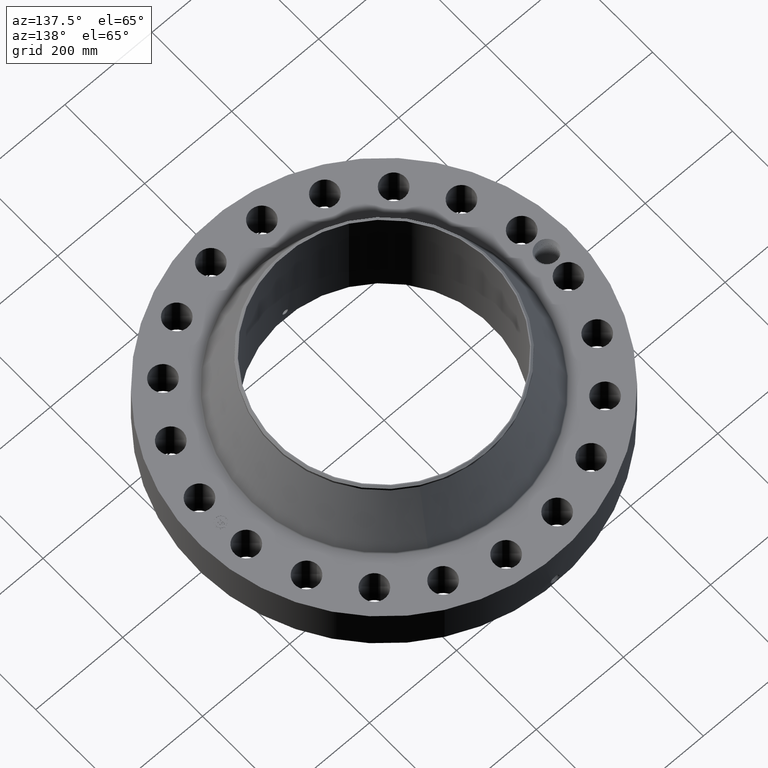
[diagram: clean part render]
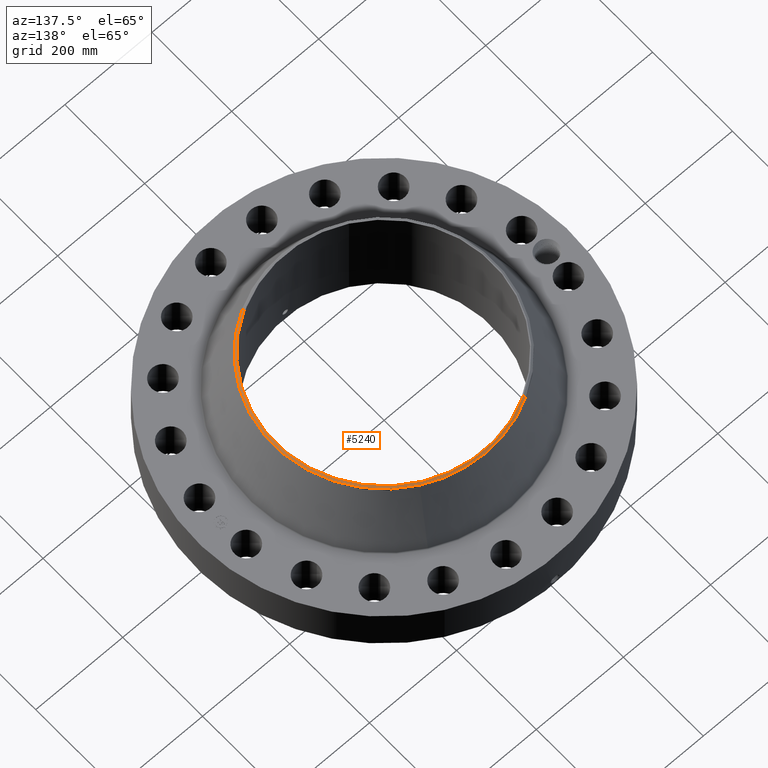
[diagram: same view with one face highlighted and labeled with its STEP entity id]
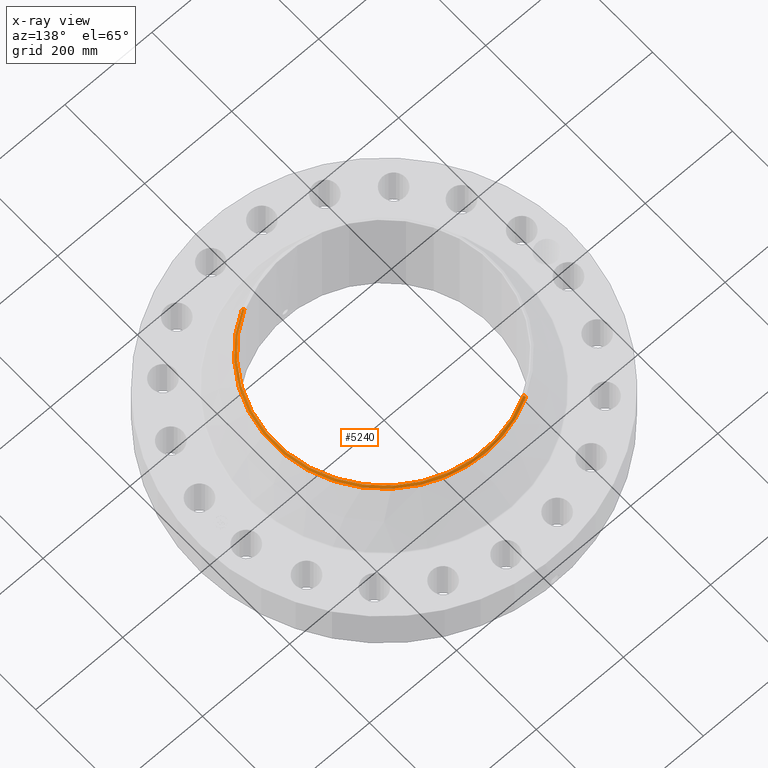
[diagram: x-ray of the same camera — body ghosted, the highlighted face saturated]
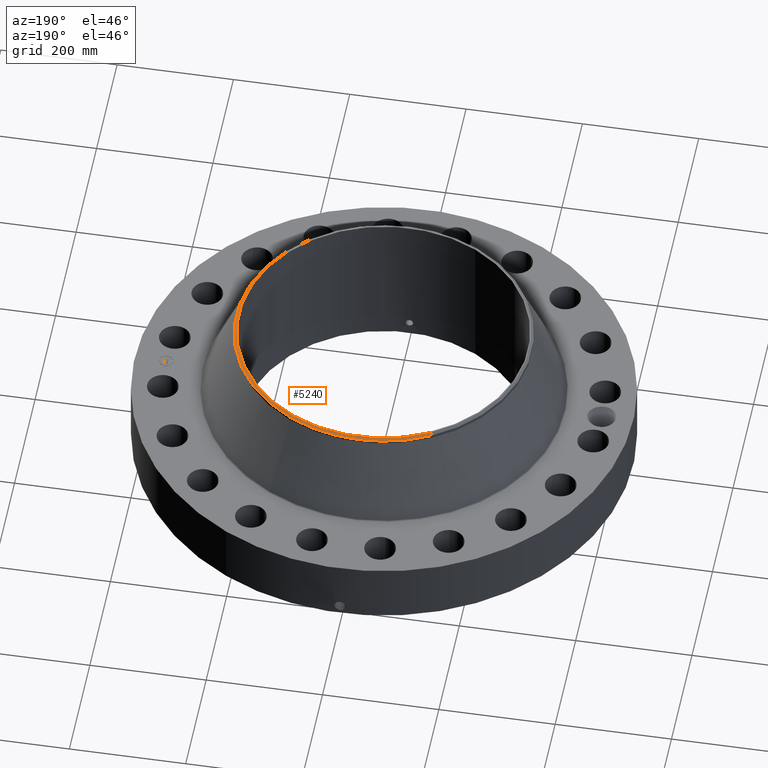
[diagram: same view with one face highlighted and labeled with its STEP entity id]
A machine part, auxiliary view. The second image highlights one B-rep face of the part: STEP entity #5240.
The next image is the same camera in x-ray: the body ghosted, the highlighted face saturated — about 0% of this face is hidden behind the body in this view.
A second angle (auxiliary view) of the same face is appended — the face is thin or edge-on in the first view.
In plain terms, the highlighted conical surface has half-angle 52.5 deg.
Its self-contained STEP definition (entity closure, byte-faithful):
#4043=AXIS2_PLACEMENT_3D('Circle Axis2P3D',#4041,#4042,$) ;
#4070=AXIS2_PLACEMENT_3D('Circle Axis2P3D',#4068,#4069,$) ;
#4856=AXIS2_PLACEMENT_3D('Circle Axis2P3D',#4854,#4855,$) ;
#5221=AXIS2_PLACEMENT_3D('Cone Axis2P3D',#5218,#5219,#5220) ;
#4038=CARTESIAN_POINT('Vertex',(4.79425538606,8.77582561894,9.86858770092)) ;
#4041=CARTESIAN_POINT('Axis2P3D Location',(0.,0.,9.86858770092)) ;
#4045=CARTESIAN_POINT('Vertex',(4.79425538606,-8.77582561894,9.86858770092)) ;
#4065=CARTESIAN_POINT('Vertex',(-4.79425538606,8.77582561894,9.86858770092)) ;
#4068=CARTESIAN_POINT('Axis2P3D Location',(0.,0.,9.86858770092)) ;
#4854=CARTESIAN_POINT('Axis2P3D Location',(0.,0.,10.)) ;
#4858=CARTESIAN_POINT('Vertex',(4.71214904382,-8.62553096759,10.)) ;
#4860=CARTESIAN_POINT('Vertex',(-4.71214904382,8.62553096759,10.)) ;
#5218=CARTESIAN_POINT('Axis2P3D Location',(0.,0.,10.)) ;
#5223=CARTESIAN_POINT('Line Origine',(-4.75320221494,8.70067829326,9.93429385048)) ;
#5228=CARTESIAN_POINT('Line Origine',(4.75320221494,-8.70067829326,9.93429385048)) ;
#4042=DIRECTION('Axis2P3D Direction',(0.,0.,-0.0393700787402)) ;
#4069=DIRECTION('Axis2P3D Direction',(0.,0.,-0.0393700787402)) ;
#4855=DIRECTION('Axis2P3D Direction',(0.,0.,-0.0393700787402)) ;
#5219=DIRECTION('Axis2P3D Direction',(-0.,-0.,-0.0393700787402)) ;
#5220=DIRECTION('Axis2P3D XDirection',(0.0188750212049,-0.0345504945626,0.)) ;
#5224=DIRECTION('Vector Direction',(-0.014974561121,0.02741075027,-0.023966985394)) ;
#5229=DIRECTION('Vector Direction',(0.014974561121,-0.02741075027,-0.023966985394)) ;
#5225=VECTOR('Line Direction',#5224,0.0393700787402) ;
#5230=VECTOR('Line Direction',#5229,0.0393700787402) ;
#5234=ORIENTED_EDGE('',*,*,#5227,.F.) ;
#5235=ORIENTED_EDGE('',*,*,#4862,.F.) ;
#5236=ORIENTED_EDGE('',*,*,#5232,.T.) ;
#5237=ORIENTED_EDGE('',*,*,#4047,.T.) ;
#5238=ORIENTED_EDGE('',*,*,#4072,.F.) ;
#5240=ADVANCED_FACE('PartBody',(#5239),#5222,.T.) ;
#4044=CIRCLE('generated circle',#4043,10.) ;
#4071=CIRCLE('generated circle',#4070,10.) ;
#4857=CIRCLE('generated circle',#4856,9.82874015752) ;
#5222=CONICAL_SURFACE('Cone',#5221,9.82874015752,0.916297857297) ;
#4047=EDGE_CURVE('',#4046,#4039,#4044,.F.) ;
#4072=EDGE_CURVE('',#4066,#4039,#4071,.T.) ;
#4862=EDGE_CURVE('',#4859,#4861,#4857,.F.) ;
#5227=EDGE_CURVE('',#4861,#4066,#5226,.T.) ;
#5232=EDGE_CURVE('',#4859,#4046,#5231,.T.) ;
#5233=EDGE_LOOP('',(#5234,#5235,#5236,#5237,#5238)) ;
#5239=FACE_OUTER_BOUND('',#5233,.T.) ;
#5226=LINE('Line',#5223,#5225) ;
#5231=LINE('Line',#5228,#5230) ;
#4039=VERTEX_POINT('',#4038) ;
#4046=VERTEX_POINT('',#4045) ;
#4066=VERTEX_POINT('',#4065) ;
#4859=VERTEX_POINT('',#4858) ;
#4861=VERTEX_POINT('',#4860) ;